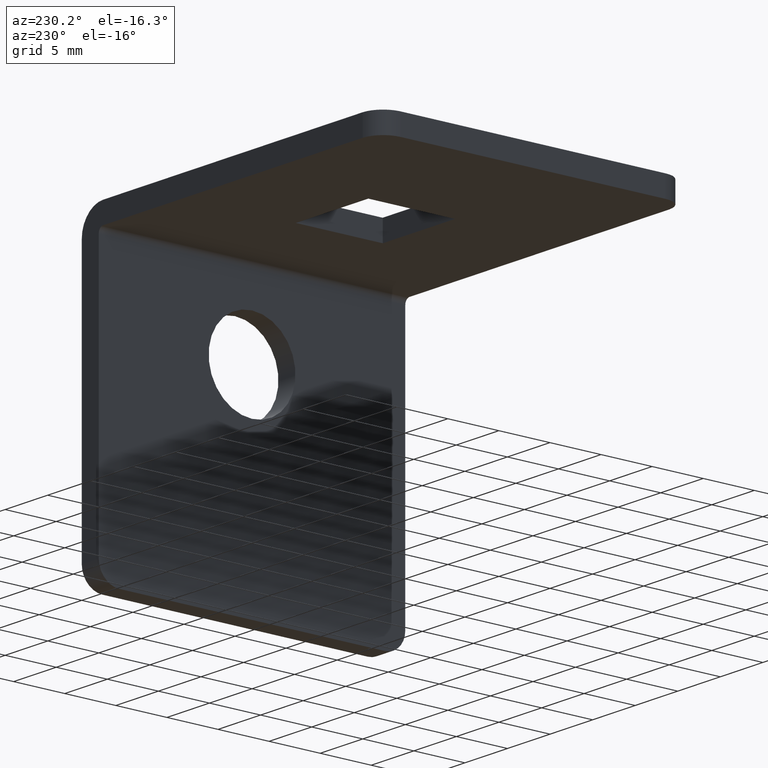
[diagram: clean part render]
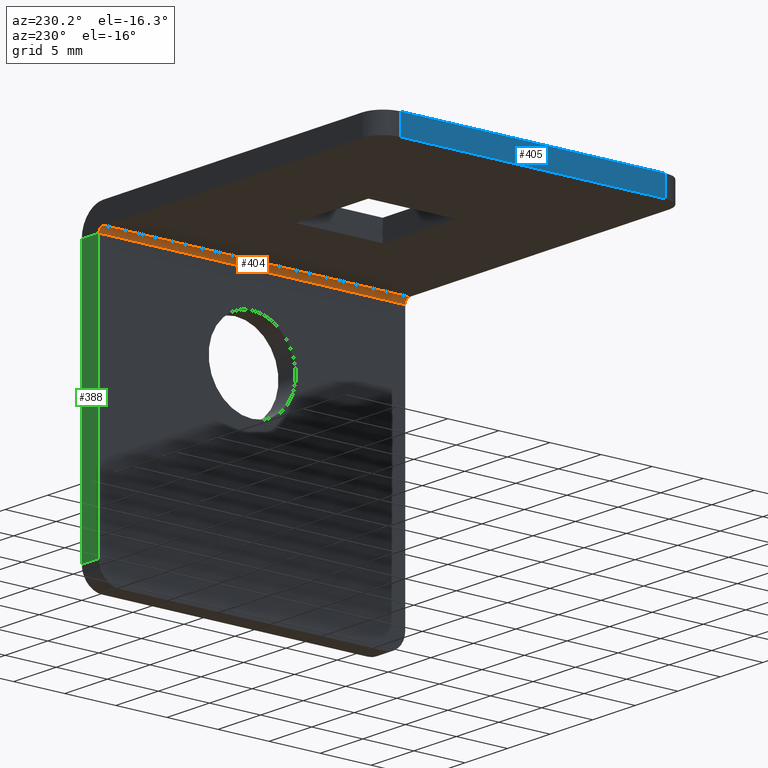
[diagram: same view with three faces highlighted in distinct colors, each labeled with its STEP entity id]
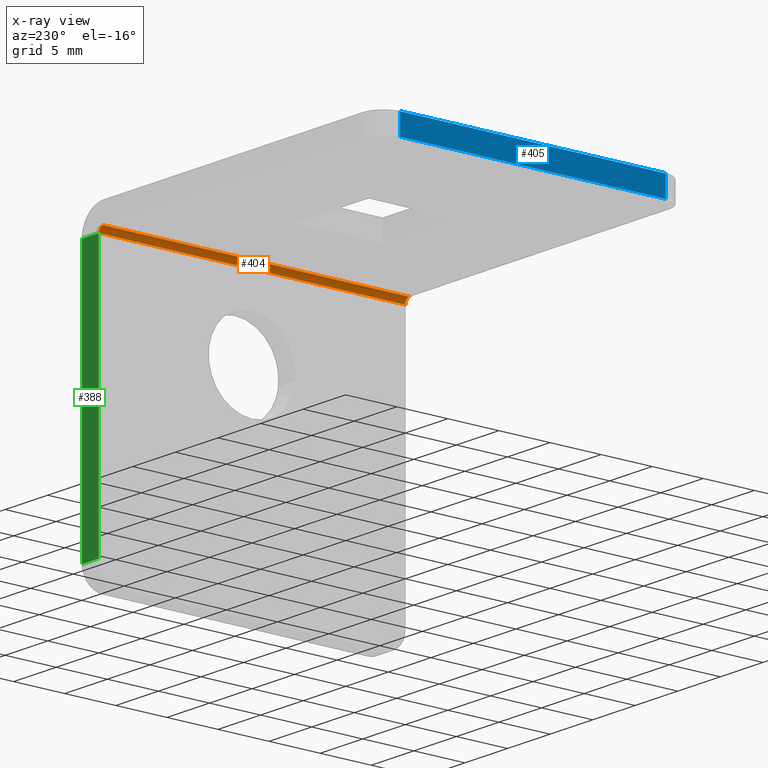
[diagram: x-ray of the same camera — body ghosted, the three highlighted faces saturated]
A machine part, auxiliary view with three faces highlighted in distinct colors.
The next image is the same camera in x-ray (body ghosted, the three faces saturated) — at least one of them is partly hidden behind the body in this view.
Their STEP definitions:

[orange] entity #404 — the highlighted cylindrical surface (edge-blend (fillet) strip) has radius 0.5 mm, axis along (0, 1, 0).
#56=FACE_OUTER_BOUND('',#83,.T.);
#83=EDGE_LOOP('',(#359,#360,#361,#362));
#93=LINE('',#582,#133);
#125=LINE('',#670,#165);
#133=VECTOR('',#464,30.);
#165=VECTOR('',#556,30.);
#179=CIRCLE('',#439,0.499999999999998);
#180=CIRCLE('',#441,0.499999999999998);
#187=VERTEX_POINT('',#579);
#188=VERTEX_POINT('',#581);
#198=VERTEX_POINT('',#608);
#208=VERTEX_POINT('',#634);
#223=EDGE_CURVE('',#187,#188,#93,.T.);
#265=EDGE_CURVE('',#188,#198,#179,.T.);
#266=EDGE_CURVE('',#187,#208,#180,.T.);
#267=EDGE_CURVE('',#198,#208,#125,.T.);
#359=ORIENTED_EDGE('',*,*,#223,.F.);
#360=ORIENTED_EDGE('',*,*,#266,.T.);
#361=ORIENTED_EDGE('',*,*,#267,.F.);
#362=ORIENTED_EDGE('',*,*,#265,.F.);
#383=CYLINDRICAL_SURFACE('',#443,0.499999999999998);
#404=ADVANCED_FACE('',(#56),#383,.F.);
#439=AXIS2_PLACEMENT_3D('',#665,#546,#547);
#441=AXIS2_PLACEMENT_3D('',#667,#550,#551);
#443=AXIS2_PLACEMENT_3D('',#669,#554,#555);
#464=DIRECTION('',(-1.74451110989651E-19,1.,2.9920537441338E-34));
#546=DIRECTION('center_axis',(0.,-1.,0.));
#547=DIRECTION('ref_axis',(1.,0.,-1.66533453693774E-15));
#550=DIRECTION('center_axis',(0.,-1.,0.));
#551=DIRECTION('ref_axis',(1.,0.,-1.66533453693774E-15));
#554=DIRECTION('center_axis',(0.,1.,0.));
#555=DIRECTION('ref_axis',(0.,0.,1.));
#556=DIRECTION('',(0.,-1.,0.));
#579=CARTESIAN_POINT('',(33.,0.,-0.499999999999998));
#581=CARTESIAN_POINT('',(33.,30.,-0.499999999999998));
#582=CARTESIAN_POINT('',(33.,15.,-0.500000000000003));
#608=CARTESIAN_POINT('',(32.5,30.,0.));
#634=CARTESIAN_POINT('',(32.5,0.,0.));
#665=CARTESIAN_POINT('Origin',(32.5,30.,-0.499999999999998));
#667=CARTESIAN_POINT('Origin',(32.5,0.,-0.499999999999998));
#669=CARTESIAN_POINT('Origin',(32.5,15.,-0.499999999999998));
#670=CARTESIAN_POINT('',(32.5,7.5,0.));

[blue] entity #405 — the highlighted planar face has unit normal (-1, 0, 0).
#34=PLANE('',#444);
#57=FACE_OUTER_BOUND('',#84,.T.);
#84=EDGE_LOOP('',(#363,#364,#365,#366));
#99=LINE('',#604,#139);
#103=LINE('',#613,#143);
#110=LINE('',#629,#150);
#126=LINE('',#672,#166);
#139=VECTOR('',#486,2.);
#143=VECTOR('',#494,26.);
#150=VECTOR('',#505,2.);
#166=VECTOR('',#559,26.);
#193=VERTEX_POINT('',#597);
#196=VERTEX_POINT('',#602);
#199=VERTEX_POINT('',#612);
#206=VERTEX_POINT('',#628);
#234=EDGE_CURVE('',#196,#193,#99,.T.);
#238=EDGE_CURVE('',#199,#193,#103,.T.);
#246=EDGE_CURVE('',#199,#206,#110,.T.);
#268=EDGE_CURVE('',#196,#206,#126,.T.);
#363=ORIENTED_EDGE('',*,*,#234,.F.);
#364=ORIENTED_EDGE('',*,*,#268,.T.);
#365=ORIENTED_EDGE('',*,*,#246,.F.);
#366=ORIENTED_EDGE('',*,*,#238,.T.);
#405=ADVANCED_FACE('',(#57),#34,.T.);
#444=AXIS2_PLACEMENT_3D('',#671,#557,#558);
#486=DIRECTION('',(0.,0.,1.));
#494=DIRECTION('',(0.,1.,0.));
#505=DIRECTION('',(0.,0.,-1.));
#557=DIRECTION('center_axis',(-1.,0.,0.));
#558=DIRECTION('ref_axis',(0.,0.,1.));
#559=DIRECTION('',(0.,-1.,0.));
#597=CARTESIAN_POINT('',(0.,28.,2.));
#602=CARTESIAN_POINT('',(0.,28.,0.));
#604=CARTESIAN_POINT('',(0.,28.,0.));
#612=CARTESIAN_POINT('',(0.,2.,2.));
#613=CARTESIAN_POINT('',(0.,30.,2.));
#628=CARTESIAN_POINT('',(0.,2.,0.));
#629=CARTESIAN_POINT('',(0.,2.,0.));
#671=CARTESIAN_POINT('Origin',(0.,0.,0.));
#672=CARTESIAN_POINT('',(0.,30.,0.));

[green] entity #388 — the highlighted planar face has unit normal (0, 1, 0).
#22=PLANE('',#418);
#40=FACE_OUTER_BOUND('',#64,.T.);
#64=EDGE_LOOP('',(#288,#289,#290,#291));
#94=LINE('',#584,#134);
#95=LINE('',#591,#135);
#96=LINE('',#594,#136);
#97=LINE('',#595,#137);
#134=VECTOR('',#465,25.5);
#135=VECTOR('',#474,2.);
#136=VECTOR('',#477,2.);
#137=VECTOR('',#478,25.5);
#188=VERTEX_POINT('',#581);
#189=VERTEX_POINT('',#583);
#191=VERTEX_POINT('',#589);
#192=VERTEX_POINT('',#593);
#224=EDGE_CURVE('',#189,#188,#94,.T.);
#228=EDGE_CURVE('',#189,#191,#95,.T.);
#229=EDGE_CURVE('',#188,#192,#96,.T.);
#230=EDGE_CURVE('',#192,#191,#97,.T.);
#288=ORIENTED_EDGE('',*,*,#228,.F.);
#289=ORIENTED_EDGE('',*,*,#224,.T.);
#290=ORIENTED_EDGE('',*,*,#229,.T.);
#291=ORIENTED_EDGE('',*,*,#230,.T.);
#388=ADVANCED_FACE('',(#40),#22,.T.);
#418=AXIS2_PLACEMENT_3D('',#592,#475,#476);
#465=DIRECTION('',(1.77635683940025E-15,0.,1.));
#474=DIRECTION('',(1.,0.,-1.71512449944288E-15));
#475=DIRECTION('center_axis',(0.,1.,0.));
#476=DIRECTION('ref_axis',(1.,0.,-1.70974345792274E-15));
#477=DIRECTION('',(1.,0.,-1.71512449944288E-15));
#478=DIRECTION('',(-1.71512449944288E-15,0.,-1.));
#581=CARTESIAN_POINT('',(33.,30.,-0.499999999999998));
#583=CARTESIAN_POINT('',(32.9999999999999,30.,-26.));
#584=CARTESIAN_POINT('',(33.,30.,3.50000000000001));
#589=CARTESIAN_POINT('',(34.9999999999999,30.,-26.));
#591=CARTESIAN_POINT('',(32.9999999999999,30.,-26.));
#592=CARTESIAN_POINT('Origin',(33.,30.,-0.499999999999998));
#593=CARTESIAN_POINT('',(35.,30.,-0.500000000000003));
#594=CARTESIAN_POINT('',(33.3866197723676,30.,-0.499999999999998));
#595=CARTESIAN_POINT('',(35.,30.,-0.500000000000003));